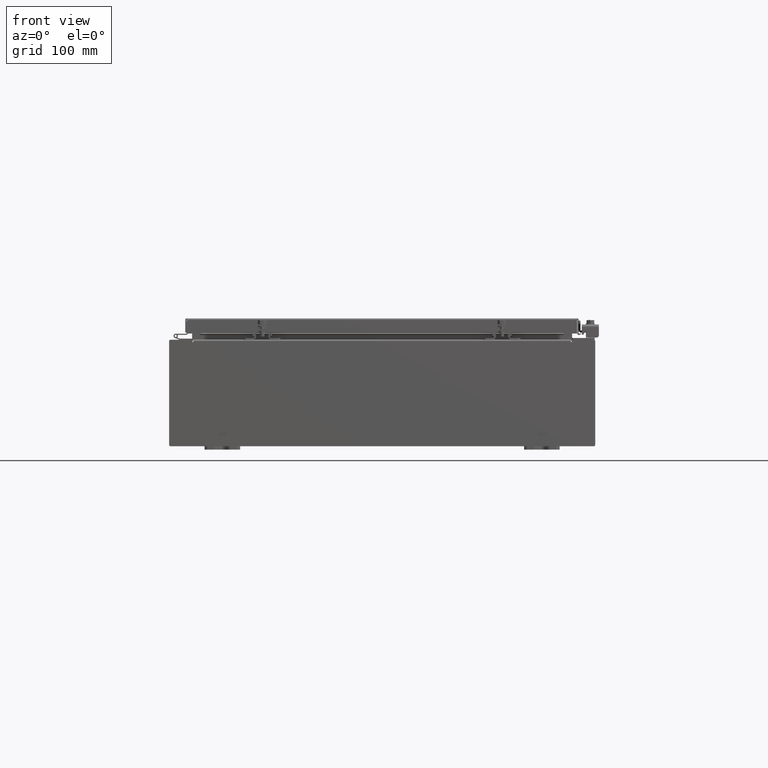
[diagram: clean part render]
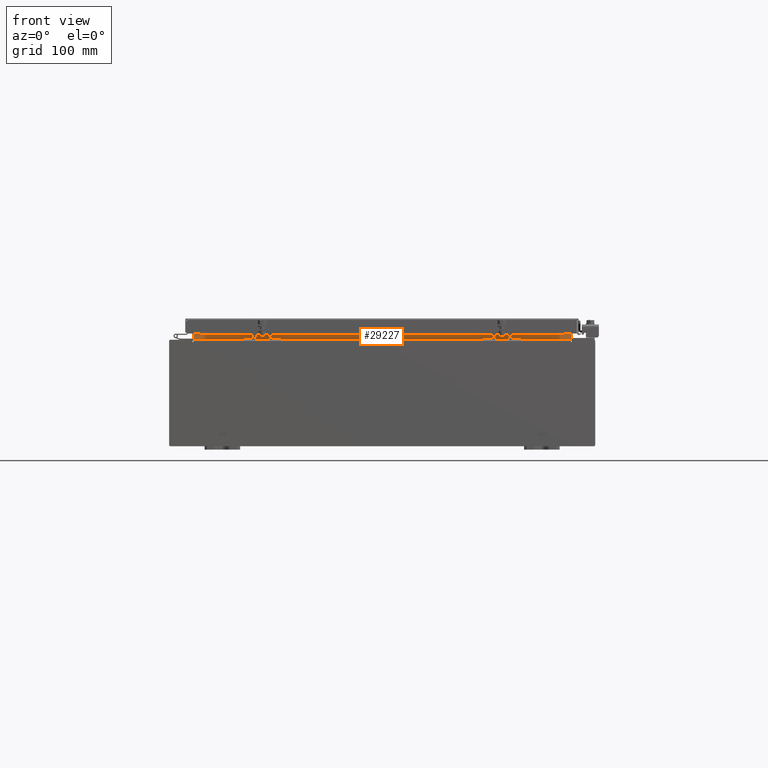
[diagram: same view with one face highlighted and labeled with its STEP entity id]
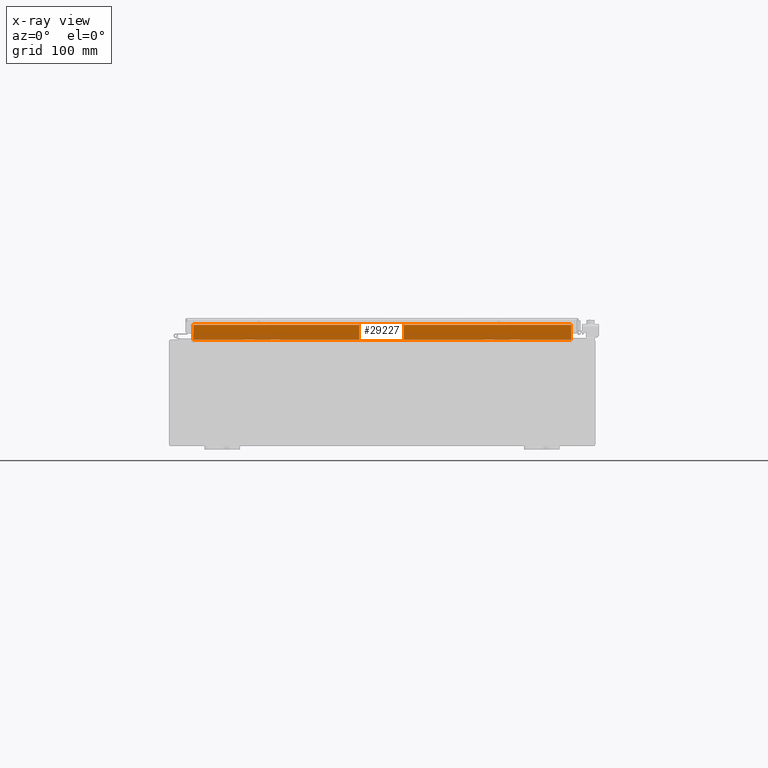
[diagram: x-ray of the same camera — body ghosted, the highlighted face saturated]
A machine part, front view. The second image highlights one B-rep face of the part: STEP entity #29227.
The next image is the same camera in x-ray: the body ghosted, the highlighted face saturated — about 0% of this face is hidden behind the body in this view.
In plain terms, the highlighted planar face has unit normal (0, -1, 0).
Its self-contained STEP definition (entity closure, byte-faithful):
#337 = VECTOR ( 'NONE', #17527, 39.37007874015748100 ) ;
#353 = VERTEX_POINT ( 'NONE', #18078 ) ;
#1444 = VERTEX_POINT ( 'NONE', #23116 ) ;
#2638 = EDGE_CURVE ( 'NONE', #12748, #13069, #12505, .T. ) ;
#2984 = PLANE ( 'NONE',  #21853 ) ;
#6794 = LINE ( 'NONE', #26575, #29230 ) ;
#8118 = CARTESIAN_POINT ( 'NONE',  ( -10.63720000000000200, -1.300299999999999800, 3.000000000000005300 ) ) ;
#8417 = ORIENTED_EDGE ( 'NONE', *, *, #32481, .F. ) ;
#8828 = CARTESIAN_POINT ( 'NONE',  ( 0.0000000000000000000, -1.300299999999999800, 0.0000000000000000000 ) ) ;
#9653 = EDGE_CURVE ( 'NONE', #1444, #353, #14963, .T. ) ;
#10011 = LINE ( 'NONE', #29232, #16904 ) ;
#11670 = DIRECTION ( 'NONE',  ( -1.000000000000000000, -0.0000000000000000000, -0.0000000000000000000 ) ) ;
#11736 = CARTESIAN_POINT ( 'NONE',  ( 10.63720000000000200, -1.300299999999999800, 3.925300000000005300 ) ) ;
#11778 = DIRECTION ( 'NONE',  ( 0.0000000000000000000, -0.0000000000000000000, 1.000000000000000000 ) ) ;
#12505 = LINE ( 'NONE', #8118, #18465 ) ;
#12748 = VERTEX_POINT ( 'NONE', #18700 ) ;
#13069 = VERTEX_POINT ( 'NONE', #23795 ) ;
#13373 = ORIENTED_EDGE ( 'NONE', *, *, #9653, .F. ) ;
#14963 = LINE ( 'NONE', #11736, #337 ) ;
#16904 = VECTOR ( 'NONE', #11670, 39.37007874015748100 ) ;
#16977 = DIRECTION ( 'NONE',  ( -0.0000000000000000000, -0.0000000000000000000, -1.000000000000000000 ) ) ;
#17527 = DIRECTION ( 'NONE',  ( -0.0000000000000000000, -0.0000000000000000000, 1.000000000000000000 ) ) ;
#18078 = CARTESIAN_POINT ( 'NONE',  ( 10.63720000000000200, -1.300299999999999800, 3.837600000000005000 ) ) ;
#18465 = VECTOR ( 'NONE', #16977, 39.37007874015748100 ) ;
#18700 = CARTESIAN_POINT ( 'NONE',  ( -10.63720000000000200, -1.300300000000000200, 3.837600000000005000 ) ) ;
#21646 = FACE_OUTER_BOUND ( 'NONE', #25280, .T. ) ;
#21853 = AXIS2_PLACEMENT_3D ( 'NONE', #8828, #29335, #11778 ) ;
#23116 = CARTESIAN_POINT ( 'NONE',  ( 10.63720000000000400, -1.300299999999999800, 3.013000000000004800 ) ) ;
#23795 = CARTESIAN_POINT ( 'NONE',  ( -10.63720000000000400, -1.300299999999999800, 3.013000000000004800 ) ) ;
#25280 = EDGE_LOOP ( 'NONE', ( #33052, #8417, #13373, #37606 ) ) ;
#26575 = CARTESIAN_POINT ( 'NONE',  ( -10.63720000000000200, -1.300299999999999800, 3.013000000000005200 ) ) ;
#29227 = ADVANCED_FACE ( 'NONE', ( #21646 ), #2984, .T. ) ;
#29230 = VECTOR ( 'NONE', #32514, 39.37007874015748100 ) ;
#29232 = CARTESIAN_POINT ( 'NONE',  ( 10.63720000000000200, -1.300300000000000200, 3.837600000000005000 ) ) ;
#29335 = DIRECTION ( 'NONE',  ( 0.0000000000000000000, 1.000000000000000000, 0.0000000000000000000 ) ) ;
#31998 = EDGE_CURVE ( 'NONE', #13069, #1444, #6794, .T. ) ;
#32481 = EDGE_CURVE ( 'NONE', #353, #12748, #10011, .T. ) ;
#32514 = DIRECTION ( 'NONE',  ( 1.000000000000000000, 0.0000000000000000000, -5.136404305013091600E-017 ) ) ;
#33052 = ORIENTED_EDGE ( 'NONE', *, *, #2638, .F. ) ;
#37606 = ORIENTED_EDGE ( 'NONE', *, *, #31998, .F. ) ;